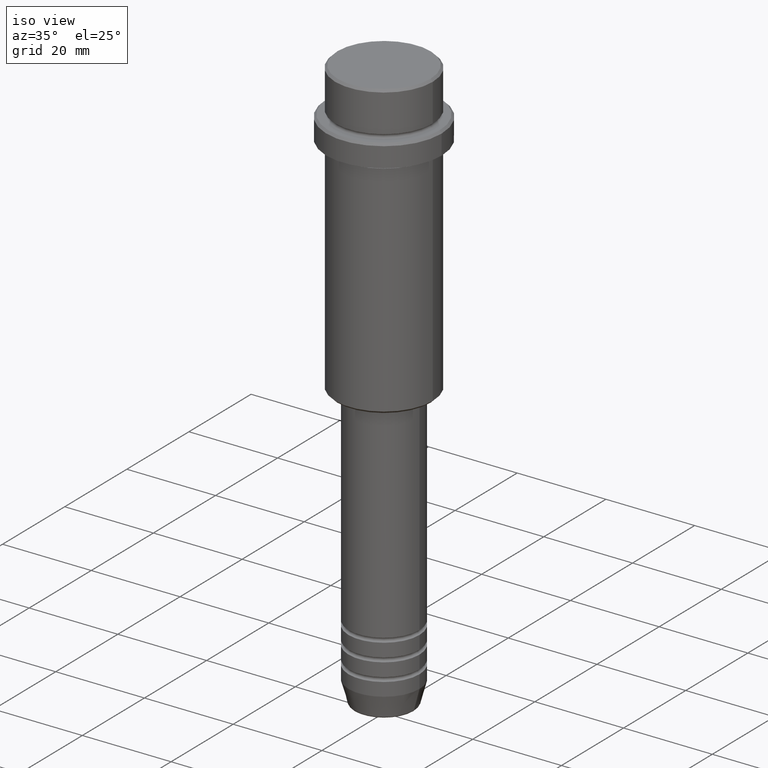
[diagram: clean part render]
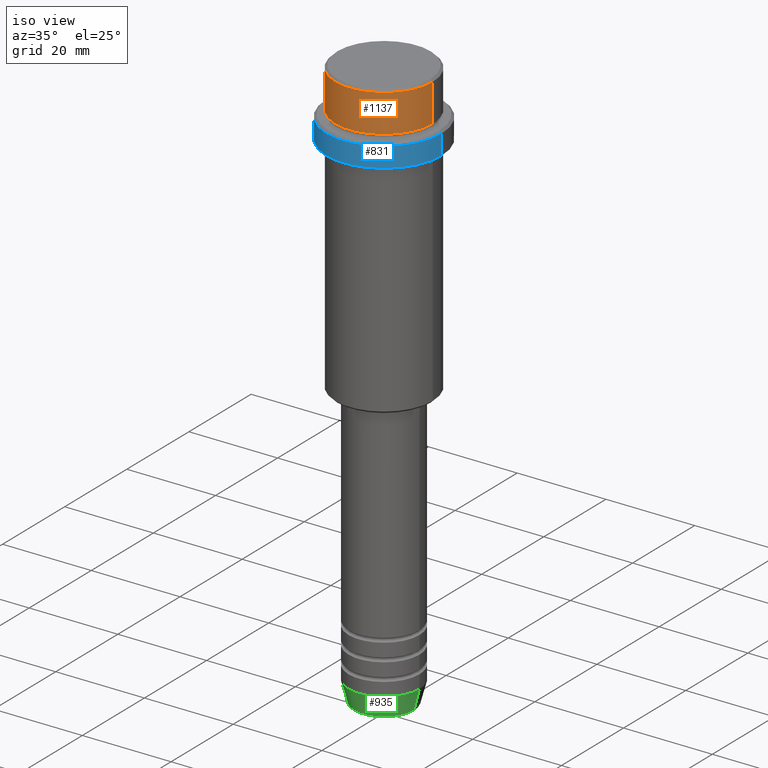
[diagram: same view with three faces highlighted in distinct colors, each labeled with its STEP entity id]
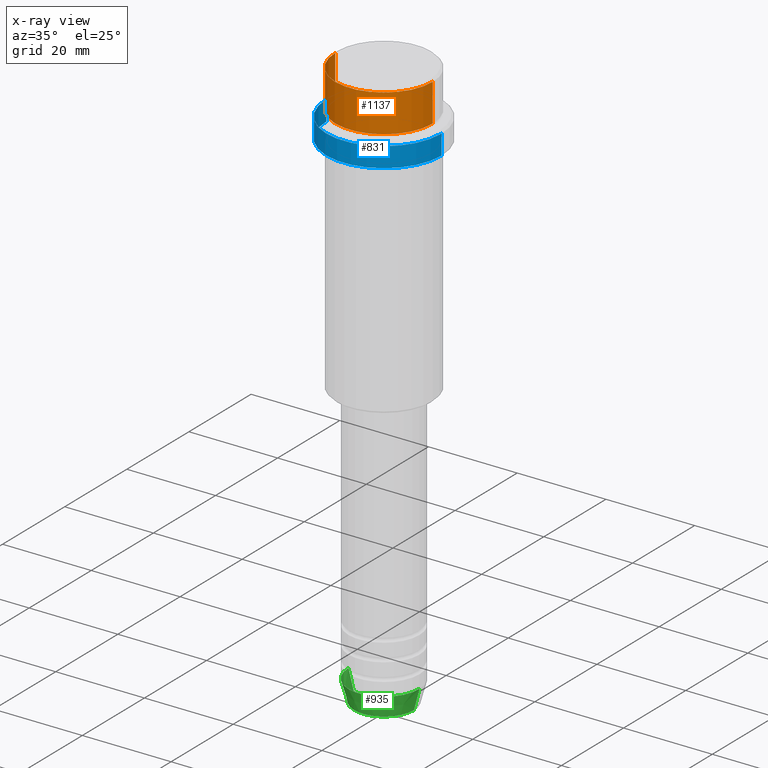
[diagram: x-ray of the same camera — body ghosted, the three highlighted faces saturated]
A machine part, iso view with three faces highlighted in distinct colors.
The next image is the same camera in x-ray (body ghosted, the three faces saturated) — at least one of them is partly hidden behind the body in this view.
Their STEP definitions:

[orange] entity #1137 — the highlighted cylindrical surface (partial cylindrical patch) has radius 11 mm, axis along (-0, -0, 1).
#21 = LINE ( 'NONE', #465, #298 ) ;
#166 = ORIENTED_EDGE ( 'NONE', *, *, #836, .T. ) ;
#229 = VECTOR ( 'NONE', #1027, 1000.000000000000000 ) ;
#243 = VERTEX_POINT ( 'NONE', #1029 ) ;
#269 = CARTESIAN_POINT ( 'NONE',  ( 0.000000000000000000, 0.000000000000000000, -9.000000000000000000 ) ) ;
#298 = VECTOR ( 'NONE', #1248, 1000.000000000000000 ) ;
#400 = AXIS2_PLACEMENT_3D ( 'NONE', #269, #608, #1376 ) ;
#415 = CARTESIAN_POINT ( 'NONE',  ( -10.99999999999997158, 1.347111479062085841E-15, -9.000000000000000000 ) ) ;
#430 = VERTEX_POINT ( 'NONE', #1236 ) ;
#438 = ORIENTED_EDGE ( 'NONE', *, *, #933, .F. ) ;
#465 = CARTESIAN_POINT ( 'NONE',  ( -10.99999999999998757, 1.347111479062086827E-15, 0.000000000000000000 ) ) ;
#516 = AXIS2_PLACEMENT_3D ( 'NONE', #1301, #1079, #1170 ) ;
#588 = VERTEX_POINT ( 'NONE', #1004 ) ;
#599 = AXIS2_PLACEMENT_3D ( 'NONE', #1263, #724, #828 ) ;
#608 = DIRECTION ( 'NONE',  ( -0.000000000000000000, -0.000000000000000000, 1.000000000000000000 ) ) ;
#724 = DIRECTION ( 'NONE',  ( 0.000000000000000000, 0.000000000000000000, -1.000000000000000000 ) ) ;
#828 = DIRECTION ( 'NONE',  ( 1.000000000000000000, 0.000000000000000000, 0.000000000000000000 ) ) ;
#836 = EDGE_CURVE ( 'NONE', #430, #588, #994, .T. ) ;
#933 = EDGE_CURVE ( 'NONE', #1283, #243, #21, .T. ) ;
#973 = EDGE_CURVE ( 'NONE', #1283, #430, #1216, .T. ) ;
#994 = LINE ( 'NONE', #1343, #229 ) ;
#1004 = CARTESIAN_POINT ( 'NONE',  ( 10.99999999999998757, 0.000000000000000000, -0.4999999999999882871 ) ) ;
#1027 = DIRECTION ( 'NONE',  ( -0.000000000000000000, -0.000000000000000000, 1.000000000000000000 ) ) ;
#1029 = CARTESIAN_POINT ( 'NONE',  ( -10.99999999999998757, 1.347111479062086827E-15, -0.4999999999999882871 ) ) ;
#1074 = EDGE_CURVE ( 'NONE', #588, #243, #1127, .T. ) ;
#1079 = DIRECTION ( 'NONE',  ( -0.000000000000000000, -0.000000000000000000, 1.000000000000000000 ) ) ;
#1127 = CIRCLE ( 'NONE', #599, 10.99999999999998757 ) ;
#1137 = ADVANCED_FACE ( 'NONE', ( #1140 ), #1396, .T. ) ;
#1140 = FACE_OUTER_BOUND ( 'NONE', #1154, .T. ) ;
#1154 = EDGE_LOOP ( 'NONE', ( #438, #1265, #166, #1375 ) ) ;
#1170 = DIRECTION ( 'NONE',  ( 1.000000000000000000, 0.000000000000000000, 0.000000000000000000 ) ) ;
#1216 = CIRCLE ( 'NONE', #400, 10.99999999999997158 ) ;
#1236 = CARTESIAN_POINT ( 'NONE',  ( 10.99999999999997158, 0.000000000000000000, -9.000000000000000000 ) ) ;
#1248 = DIRECTION ( 'NONE',  ( -0.000000000000000000, -0.000000000000000000, 1.000000000000000000 ) ) ;
#1263 = CARTESIAN_POINT ( 'NONE',  ( 0.000000000000000000, 0.000000000000000000, -0.4999999999999882871 ) ) ;
#1265 = ORIENTED_EDGE ( 'NONE', *, *, #973, .T. ) ;
#1283 = VERTEX_POINT ( 'NONE', #415 ) ;
#1301 = CARTESIAN_POINT ( 'NONE',  ( 0.000000000000000000, 0.000000000000000000, 0.000000000000000000 ) ) ;
#1343 = CARTESIAN_POINT ( 'NONE',  ( 10.99999999999998757, 0.000000000000000000, 0.000000000000000000 ) ) ;
#1375 = ORIENTED_EDGE ( 'NONE', *, *, #1074, .T. ) ;
#1376 = DIRECTION ( 'NONE',  ( 1.000000000000000000, 0.000000000000000000, 0.000000000000000000 ) ) ;
#1396 = CYLINDRICAL_SURFACE ( 'NONE', #516, 10.99999999999998757 ) ;

[blue] entity #831 — the highlighted cylindrical surface (partial cylindrical patch) has radius 13 mm, axis along (-0, -0, 1).
#6 = CARTESIAN_POINT ( 'NONE',  ( 13.00000000000000000, 0.000000000000000000, -15.00000000000000178 ) ) ;
#49 = EDGE_LOOP ( 'NONE', ( #250, #991, #393, #1314 ) ) ;
#62 = CARTESIAN_POINT ( 'NONE',  ( 0.000000000000000000, 0.000000000000000000, -15.00000000000000178 ) ) ;
#138 = EDGE_CURVE ( 'NONE', #1348, #510, #517, .T. ) ;
#145 = DIRECTION ( 'NONE',  ( 0.000000000000000000, 0.000000000000000000, -1.000000000000000000 ) ) ;
#195 = VERTEX_POINT ( 'NONE', #6 ) ;
#238 = CARTESIAN_POINT ( 'NONE',  ( 13.00000000000000000, 0.000000000000000000, 0.000000000000000000 ) ) ;
#250 = ORIENTED_EDGE ( 'NONE', *, *, #1398, .F. ) ;
#329 = DIRECTION ( 'NONE',  ( -0.000000000000000000, -0.000000000000000000, 1.000000000000000000 ) ) ;
#378 = DIRECTION ( 'NONE',  ( 1.000000000000000000, 0.000000000000000000, 0.000000000000000000 ) ) ;
#393 = ORIENTED_EDGE ( 'NONE', *, *, #1328, .T. ) ;
#421 = AXIS2_PLACEMENT_3D ( 'NONE', #1242, #145, #378 ) ;
#501 = VECTOR ( 'NONE', #570, 1000.000000000000000 ) ;
#510 = VERTEX_POINT ( 'NONE', #859 ) ;
#517 = CIRCLE ( 'NONE', #421, 13.00000000000000000 ) ;
#520 = FACE_OUTER_BOUND ( 'NONE', #49, .T. ) ;
#544 = CARTESIAN_POINT ( 'NONE',  ( -13.00000000000000000, 1.592040838891559095E-15, -15.00000000000000178 ) ) ;
#570 = DIRECTION ( 'NONE',  ( -0.000000000000000000, -0.000000000000000000, 1.000000000000000000 ) ) ;
#670 = CARTESIAN_POINT ( 'NONE',  ( 13.00000000000000000, 0.000000000000000000, -10.50000000000000711 ) ) ;
#683 = EDGE_CURVE ( 'NONE', #1235, #195, #1287, .T. ) ;
#815 = DIRECTION ( 'NONE',  ( 1.000000000000000000, 0.000000000000000000, 0.000000000000000000 ) ) ;
#831 = ADVANCED_FACE ( 'NONE', ( #520 ), #1394, .T. ) ;
#847 = AXIS2_PLACEMENT_3D ( 'NONE', #1065, #1240, #1125 ) ;
#859 = CARTESIAN_POINT ( 'NONE',  ( -13.00000000000000000, 1.592040838891559095E-15, -10.50000000000000711 ) ) ;
#873 = LINE ( 'NONE', #886, #970 ) ;
#886 = CARTESIAN_POINT ( 'NONE',  ( -13.00000000000000000, 1.592040838891559095E-15, 0.000000000000000000 ) ) ;
#928 = AXIS2_PLACEMENT_3D ( 'NONE', #62, #1374, #815 ) ;
#970 = VECTOR ( 'NONE', #329, 1000.000000000000000 ) ;
#991 = ORIENTED_EDGE ( 'NONE', *, *, #683, .T. ) ;
#1019 = LINE ( 'NONE', #238, #501 ) ;
#1065 = CARTESIAN_POINT ( 'NONE',  ( 0.000000000000000000, 0.000000000000000000, 0.000000000000000000 ) ) ;
#1125 = DIRECTION ( 'NONE',  ( 1.000000000000000000, 0.000000000000000000, 0.000000000000000000 ) ) ;
#1235 = VERTEX_POINT ( 'NONE', #544 ) ;
#1240 = DIRECTION ( 'NONE',  ( -0.000000000000000000, -0.000000000000000000, 1.000000000000000000 ) ) ;
#1242 = CARTESIAN_POINT ( 'NONE',  ( 0.000000000000000000, 0.000000000000000000, -10.50000000000000711 ) ) ;
#1287 = CIRCLE ( 'NONE', #928, 13.00000000000000000 ) ;
#1314 = ORIENTED_EDGE ( 'NONE', *, *, #138, .T. ) ;
#1328 = EDGE_CURVE ( 'NONE', #195, #1348, #1019, .T. ) ;
#1348 = VERTEX_POINT ( 'NONE', #670 ) ;
#1374 = DIRECTION ( 'NONE',  ( -0.000000000000000000, -0.000000000000000000, 1.000000000000000000 ) ) ;
#1394 = CYLINDRICAL_SURFACE ( 'NONE', #847, 13.00000000000000000 ) ;
#1398 = EDGE_CURVE ( 'NONE', #1235, #510, #873, .T. ) ;

[green] entity #935 — the highlighted conical surface has half-angle 15 deg.
#4 = ORIENTED_EDGE ( 'NONE', *, *, #1077, .T. ) ;
#10 = CARTESIAN_POINT ( 'NONE',  ( -6.759553456999433330, 9.037619948979304241E-16, -129.6294095225512422 ) ) ;
#13 = VECTOR ( 'NONE', #1070, 1000.000000000000000 ) ;
#66 = VERTEX_POINT ( 'NONE', #1174 ) ;
#93 = LINE ( 'NONE', #1199, #472 ) ;
#161 = VERTEX_POINT ( 'NONE', #10 ) ;
#232 = CIRCLE ( 'NONE', #990, 8.000000000000000000 ) ;
#255 = FACE_OUTER_BOUND ( 'NONE', #1078, .T. ) ;
#281 = EDGE_CURVE ( 'NONE', #161, #602, #1201, .T. ) ;
#292 = DIRECTION ( 'NONE',  ( -0.000000000000000000, -0.000000000000000000, 1.000000000000000000 ) ) ;
#307 = EDGE_CURVE ( 'NONE', #602, #66, #232, .T. ) ;
#354 = CARTESIAN_POINT ( 'NONE',  ( -8.000000000000000000, 9.797174393178825657E-16, -125.0000000000000000 ) ) ;
#472 = VECTOR ( 'NONE', #1091, 1000.000000000000000 ) ;
#547 = ORIENTED_EDGE ( 'NONE', *, *, #1264, .T. ) ;
#602 = VERTEX_POINT ( 'NONE', #354 ) ;
#659 = CIRCLE ( 'NONE', #734, 6.759553456999433330 ) ;
#681 = CARTESIAN_POINT ( 'NONE',  ( 0.000000000000000000, 0.000000000000000000, -125.0000000000000000 ) ) ;
#718 = DIRECTION ( 'NONE',  ( 1.000000000000000000, 0.000000000000000000, 0.000000000000000000 ) ) ;
#734 = AXIS2_PLACEMENT_3D ( 'NONE', #835, #292, #718 ) ;
#759 = CARTESIAN_POINT ( 'NONE',  ( 6.759553456999433330, 0.000000000000000000, -129.6294095225512422 ) ) ;
#835 = CARTESIAN_POINT ( 'NONE',  ( 0.000000000000000000, 0.000000000000000000, -129.6294095225512422 ) ) ;
#855 = CARTESIAN_POINT ( 'NONE',  ( -8.000000000000000000, 9.797174393178825657E-16, -125.0000000000000000 ) ) ;
#879 = ORIENTED_EDGE ( 'NONE', *, *, #307, .F. ) ;
#881 = DIRECTION ( 'NONE',  ( -0.000000000000000000, -0.000000000000000000, 1.000000000000000000 ) ) ;
#911 = DIRECTION ( 'NONE',  ( 1.000000000000000000, 0.000000000000000000, 0.000000000000000000 ) ) ;
#918 = DIRECTION ( 'NONE',  ( -0.000000000000000000, -0.000000000000000000, 1.000000000000000000 ) ) ;
#935 = ADVANCED_FACE ( 'NONE', ( #255 ), #1012, .T. ) ;
#985 = AXIS2_PLACEMENT_3D ( 'NONE', #1217, #918, #1229 ) ;
#990 = AXIS2_PLACEMENT_3D ( 'NONE', #681, #881, #911 ) ;
#1012 = CONICAL_SURFACE ( 'NONE', #985, 8.000000000000000000, 0.2617993877991500740 ) ;
#1070 = DIRECTION ( 'NONE',  ( -0.2588190451025213501, 3.169619151431772337E-17, 0.9659258262890680902 ) ) ;
#1077 = EDGE_CURVE ( 'NONE', #161, #1262, #659, .T. ) ;
#1078 = EDGE_LOOP ( 'NONE', ( #1210, #4, #547, #879 ) ) ;
#1091 = DIRECTION ( 'NONE',  ( 0.2588190451025213501, 0.000000000000000000, 0.9659258262890680902 ) ) ;
#1174 = CARTESIAN_POINT ( 'NONE',  ( 8.000000000000000000, 0.000000000000000000, -125.0000000000000000 ) ) ;
#1199 = CARTESIAN_POINT ( 'NONE',  ( 8.000000000000000000, 0.000000000000000000, -125.0000000000000000 ) ) ;
#1201 = LINE ( 'NONE', #855, #13 ) ;
#1210 = ORIENTED_EDGE ( 'NONE', *, *, #281, .F. ) ;
#1217 = CARTESIAN_POINT ( 'NONE',  ( 0.000000000000000000, 0.000000000000000000, -125.0000000000000000 ) ) ;
#1229 = DIRECTION ( 'NONE',  ( 1.000000000000000000, 0.000000000000000000, 0.000000000000000000 ) ) ;
#1262 = VERTEX_POINT ( 'NONE', #759 ) ;
#1264 = EDGE_CURVE ( 'NONE', #1262, #66, #93, .T. ) ;